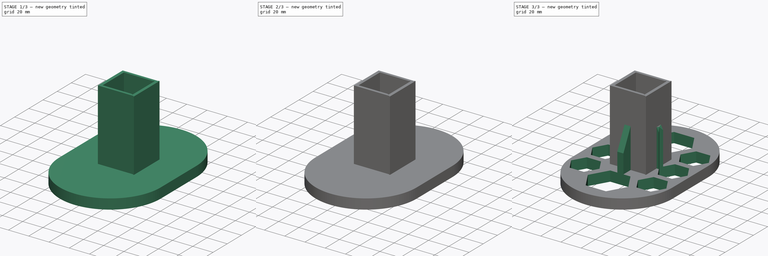
[diagram: build sequence overview — one tinted view per stage of 3, left to right]
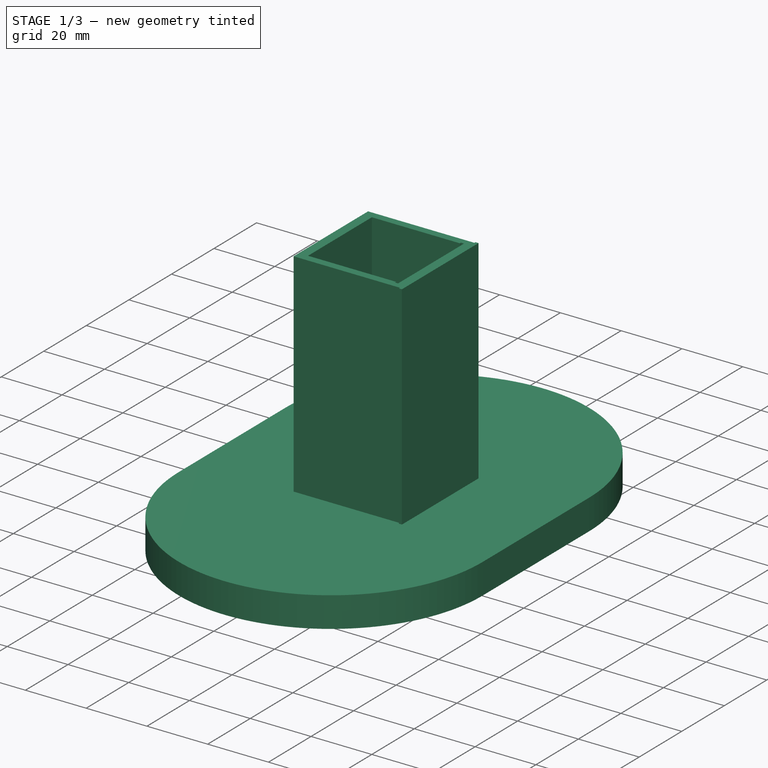
[diagram: stage 1 of 3 — iso view after this stage's code; geometry added in this stage tinted green]
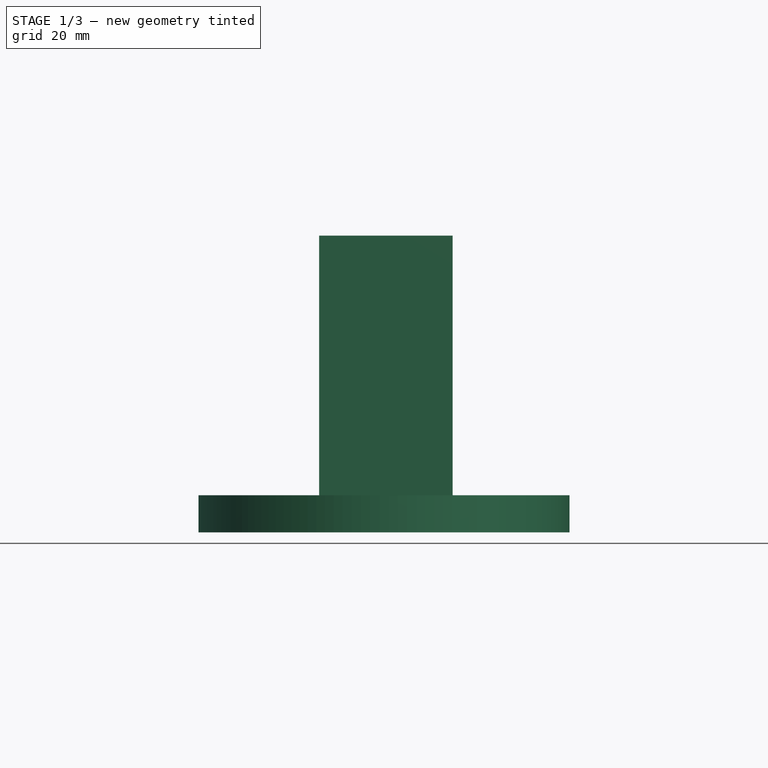
[diagram: stage 1 of 3 — front view after this stage's code; geometry added in this stage tinted green]
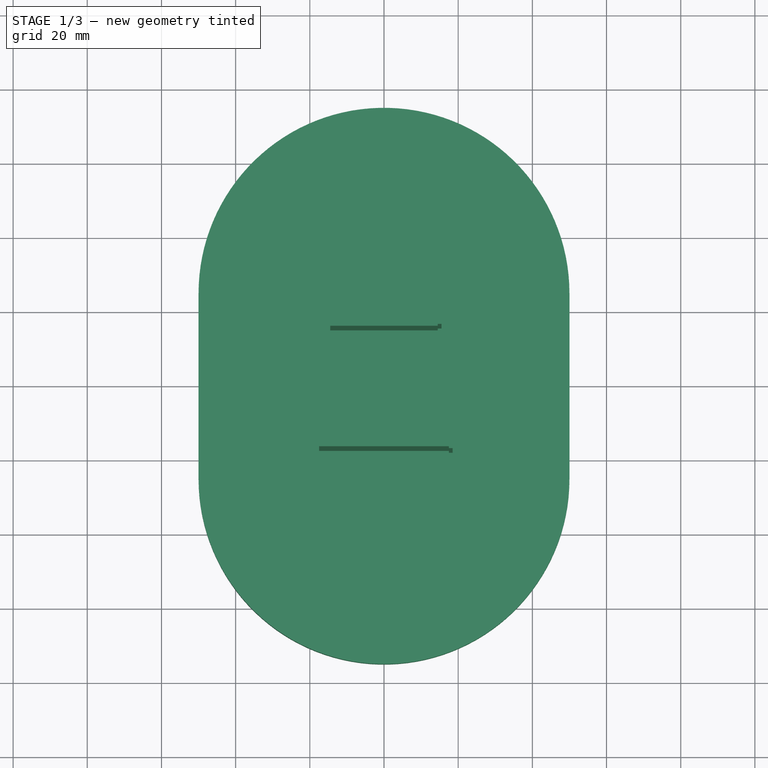
[diagram: stage 1 of 3 — top view after this stage's code; geometry added in this stage tinted green]
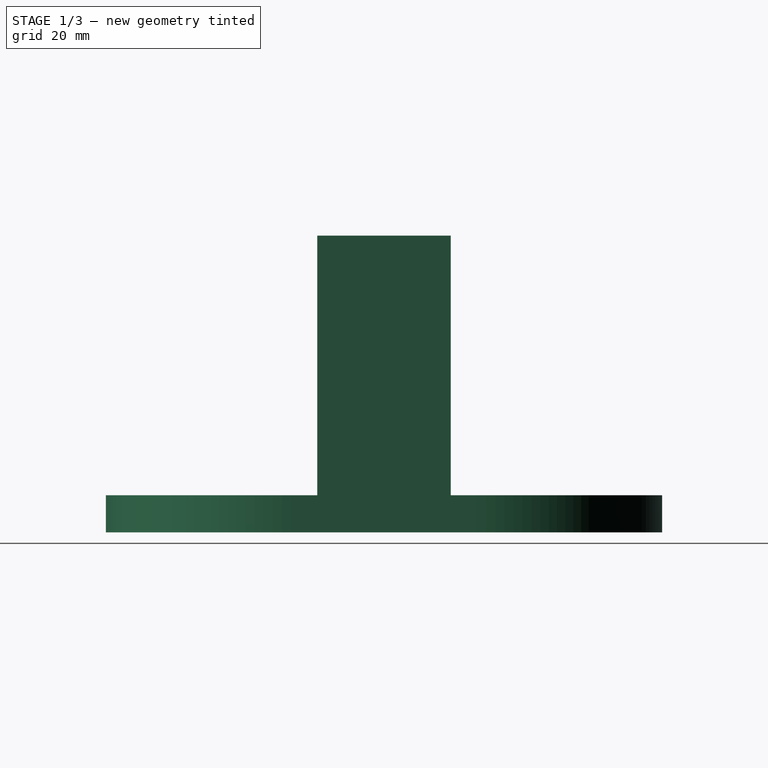
[diagram: stage 1 of 3 — right view after this stage's code; geometry added in this stage tinted green]
FCSTD DOCUMENT  (FreeCAD 0.19R24267 +99 (Git))
Label: Shoe_base
License: All rights reserved
LicenseURL: http://en.wikipedia.org/wiki/All_rights_reserved
objects: Sketcher::SketchObject×4, PartDesign::Pad×3, PartDesign::PolarPattern×1, PartDesign::Pocket×1, PartDesign::Body×1
note: 14 computed .brp shape members not serialized (recipe doc carries the construction recipe); baked Part::Feature solids carry a one-line shape summary decoded from their .brp

FEATURE [Sketcher::SketchObject] Sketch
  FullyConstrained = true
  MapMode = 5
  Support = -> [XY_Plane]
  sketch-geometry (4):
    g0: ArcOfCircle CenterX=1.29e-14 CenterY=25 CenterZ=0 NormalX=0 NormalY=0 NormalZ=1 AngleXU=0 Radius=50 StartAngle=-9e-16 EndAngle=3.14159
    g1: ArcOfCircle CenterX=-1.29e-14 CenterY=-25 CenterZ=0 NormalX=0 NormalY=0 NormalZ=1 AngleXU=0 Radius=50 StartAngle=3.14159 EndAngle=6.28319
    g2: LineSegment StartX=-50 StartY=25 StartZ=0 EndX=-50 EndY=-25 EndZ=0
    g3: LineSegment StartX=50 StartY=25 StartZ=0 EndX=50 EndY=-25 EndZ=0
  constraints (9):
    c: Tangent(g0,g3) = 1.5708
    c: Tangent(g0,g2) = -1.5708
    c: Tangent(g2,g1) = -1.5708
    c: Tangent(g3,g1) = 1.5708
    c: Vertical(g2)
    c: Equal(g0,g1)
    c: Symmetric(g0,g1,g-1)
    c: Distance(g0,g1) = 50
    c: Radius(g0) = 50
FEATURE [PartDesign::Pad] Pad
  Direction = (1,1,1)
  Length = 10
  Length2 = 100
  Profile = -> Sketch
  Type = 0
FEATURE [Sketcher::SketchObject] Sketch001
  FullyConstrained = true
  MapMode = 5
  Placement = pos=(0,0,10) rot=(0,0,1;0rad)
  Support = -> [Pad]
  sketch-geometry (16):
    g0: LineSegment StartX=-17.5 StartY=17.5 StartZ=0 EndX=17.5 EndY=17.5 EndZ=0
    g1: LineSegment StartX=17.5 StartY=17.5 StartZ=0 EndX=17.5 EndY=18 EndZ=0
    g2: LineSegment StartX=17.5 StartY=18 StartZ=0 EndX=18.5 EndY=18 EndZ=0
    g3: LineSegment StartX=18.5 StartY=18 StartZ=0 EndX=18.5 EndY=-18 EndZ=0
    g4: LineSegment StartX=18.5 StartY=-18 StartZ=0 EndX=17.5 EndY=-18 EndZ=0
    g5: LineSegment StartX=17.5 StartY=-18 StartZ=0 EndX=17.5 EndY=-17.5 EndZ=0
    g6: LineSegment StartX=17.5 StartY=-17.5 StartZ=0 EndX=-17.5 EndY=-17.5 EndZ=0
    g7: LineSegment StartX=-17.5 StartY=-17.5 StartZ=0 EndX=-17.5 EndY=17.5 EndZ=0
    g8: LineSegment StartX=-14.5 StartY=15 StartZ=0 EndX=-14.5 EndY=-15 EndZ=0
    g9: LineSegment StartX=-14.5 StartY=-15 StartZ=0 EndX=14.5 EndY=-15 EndZ=0
    g10: LineSegment StartX=14.5 StartY=-15 StartZ=0 EndX=14.5 EndY=-15.5 EndZ=0
    g11: LineSegment StartX=14.5 StartY=-15.5 StartZ=0 EndX=15.5 EndY=-15.5 EndZ=0
    g12: LineSegment StartX=15.5 StartY=-15.5 StartZ=0 EndX=15.5 EndY=15.5 EndZ=0
    g13: LineSegment StartX=15.5 StartY=15.5 StartZ=0 EndX=14.5 EndY=15.5 EndZ=0
    g14: LineSegment StartX=14.5 StartY=15.5 StartZ=0 EndX=14.5 EndY=15 EndZ=0
    g15: LineSegment StartX=14.5 StartY=15 StartZ=0 EndX=-14.5 EndY=15 EndZ=0
  constraints (40):
    c: Coincident(g0,g1)
    c: Coincident(g1,g2)
    c: Horizontal(g2)
    c: Coincident(g2,g3)
    c: Coincident(g3,g4)
    c: Coincident(g4,g5)
    c: Vertical(g5)
    c: Coincident(g5,g6)
    c: Coincident(g6,g7)
    c: Coincident(g7,g0)
    c: Symmetric(g0,g5,g-1)
    c: Symmetric(g1,g4,g-1)
    c: Symmetric(g2,g3,g-1)
    c: Symmetric(g0,g6,g-1)
    c: Distance(g7) = 35
    c: Distance(g0) = 35
    c: Distance(g2) = 1
    c: Distance(g3) = 36
    c: Symmetric(g0,g0,g-2)
    c: Coincident(g8,g9)
    c: Horizontal(g9)
    c: Coincident(g9,g10)
    c: Vertical(g10)
    c: Coincident(g10,g11)
    c: Horizontal(g11)
    c: Coincident(g11,g12)
    c: Coincident(g12,g13)
    c: Horizontal(g13)
    c: Coincident(g13,g14)
    c: Vertical(g14)
    c: Coincident(g14,g15)
    c: Coincident(g15,g8)
    c: Symmetric(g8,g8,g-1)
    c: Distance(g8) = 30
    c: Distance(g15) = 29
    c: Distance(g13) = 1
    c: Distance(g12) = 31
    c: Symmetric(g12,g11,g-1)
    c: Distance(g9) = 29
    c: Symmetric(g8,g14,g-2)
FEATURE [PartDesign::Pad] Pad001
  BaseFeature = -> Pad
  Direction = (1,1,1)
  Length = 70
  Length2 = 100
  Profile = -> Sketch001
  Type = 0
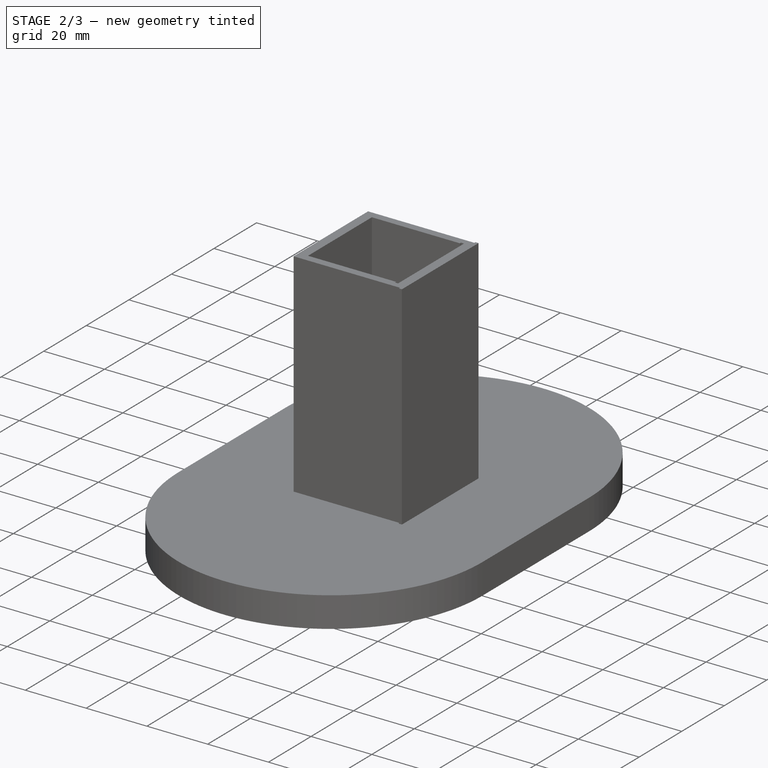
[diagram: stage 2 of 3 — iso view after this stage's code; geometry added in this stage tinted green]
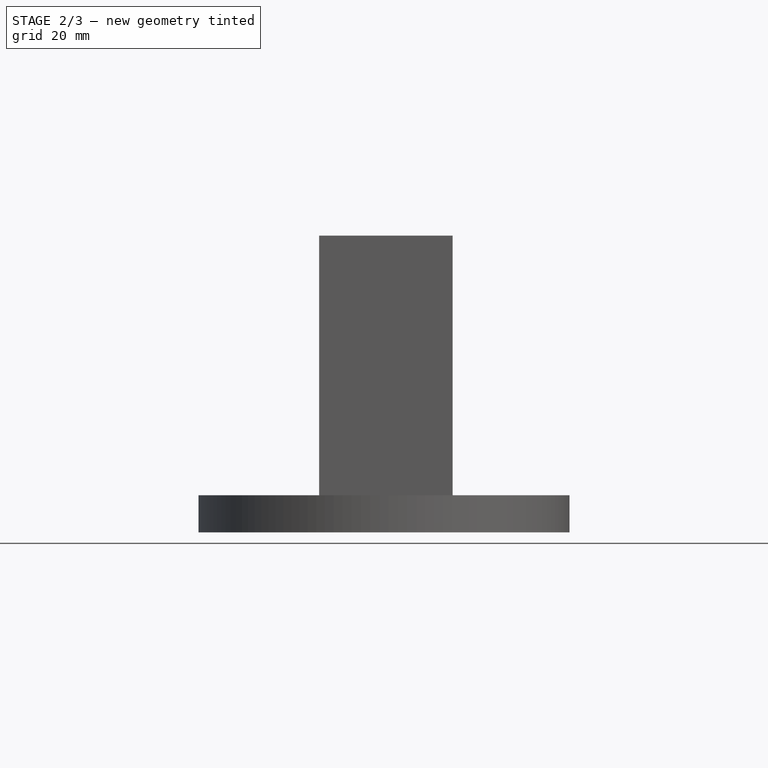
[diagram: stage 2 of 3 — front view after this stage's code; geometry added in this stage tinted green]
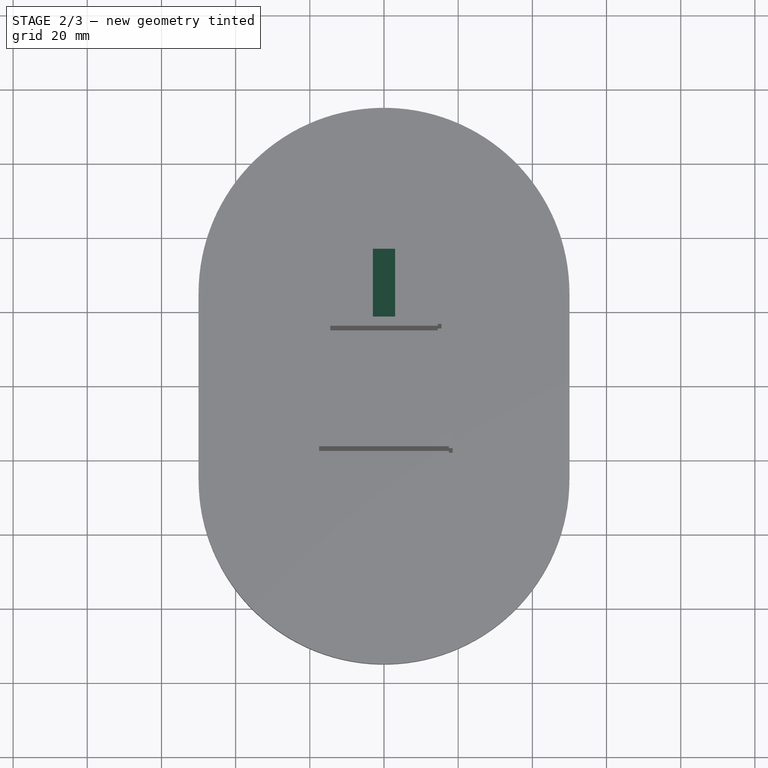
[diagram: stage 2 of 3 — top view after this stage's code; geometry added in this stage tinted green]
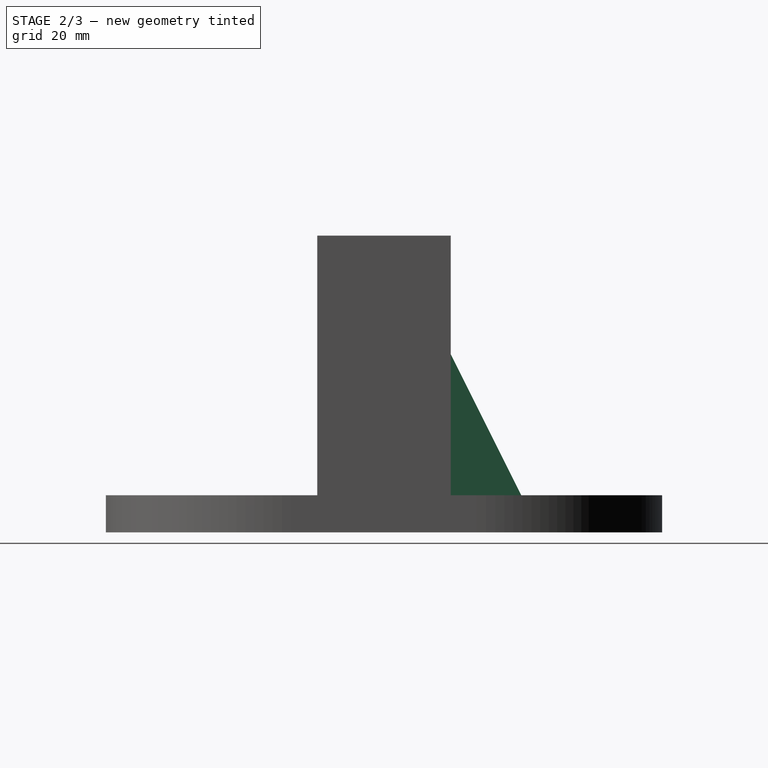
[diagram: stage 2 of 3 — right view after this stage's code; geometry added in this stage tinted green]
FEATURE [Sketcher::SketchObject] Sketch002
  ExternalGeometry = -> [Pad001]
  FullyConstrained = true
  MapMode = 5
  Placement = pos=(0,0,0) rot=(0.57735,0.57735,0.57735;2.0944rad)
  Support = -> [YZ_Plane]
  sketch-geometry (3):
    g0: LineSegment StartX=17 StartY=50 StartZ=0 EndX=37 EndY=10 EndZ=0
    g1: LineSegment StartX=37 StartY=10 StartZ=0 EndX=17 EndY=10 EndZ=0
    g2: LineSegment StartX=17 StartY=10 StartZ=0 EndX=17 EndY=50 EndZ=0
  constraints (9):
    c: PointOnObject(g0,g-3)
    c: Coincident(g0,g1)
    c: Coincident(g1,g2)
    c: Coincident(g2,g0)
    c: Distance(g1) = 20
    c: Distance(g2) = 40
    c: Distance(g0,g-2) = 17
    c: Distance(g1,g-2) = 17
    c: Perpendicular(g2,g1)
FEATURE [PartDesign::Pad] Pad002
  BaseFeature = -> Pad001
  Direction = (1,1,1)
  Length = 3
  Length2 = 3
  Profile = -> Sketch002
  Type = 4
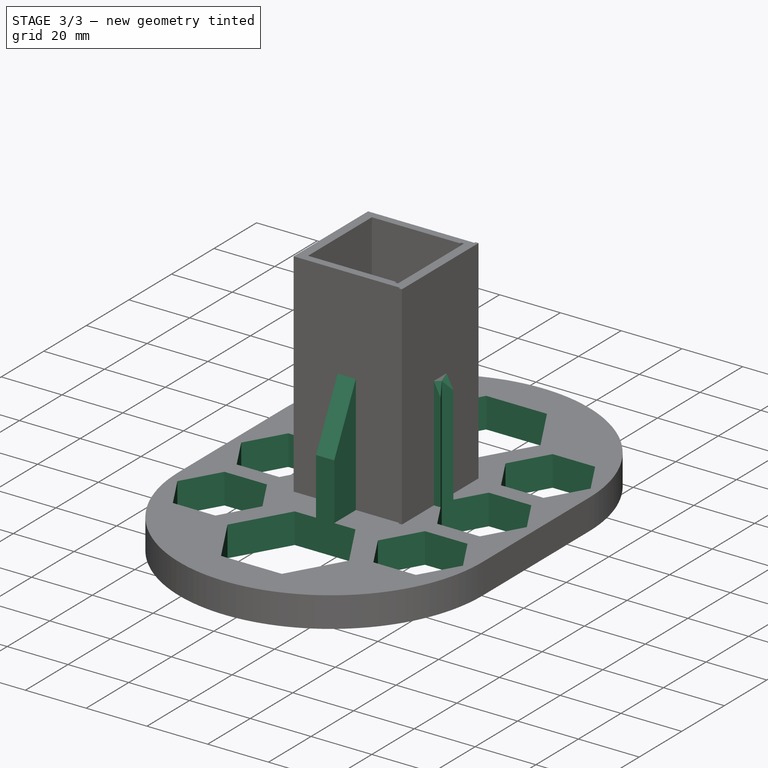
[diagram: stage 3 of 3 — iso view after this stage's code; geometry added in this stage tinted green]
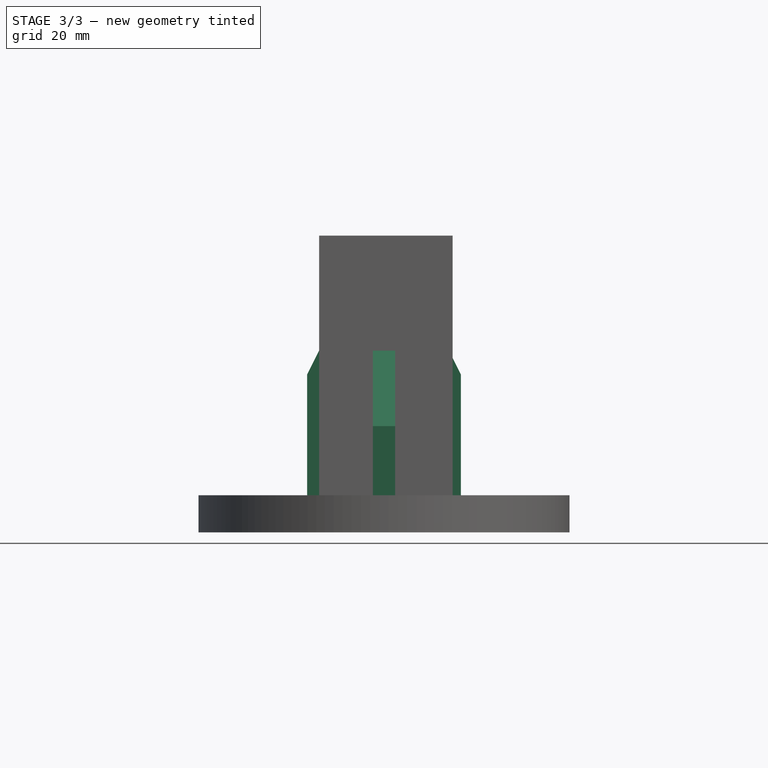
[diagram: stage 3 of 3 — front view after this stage's code; geometry added in this stage tinted green]
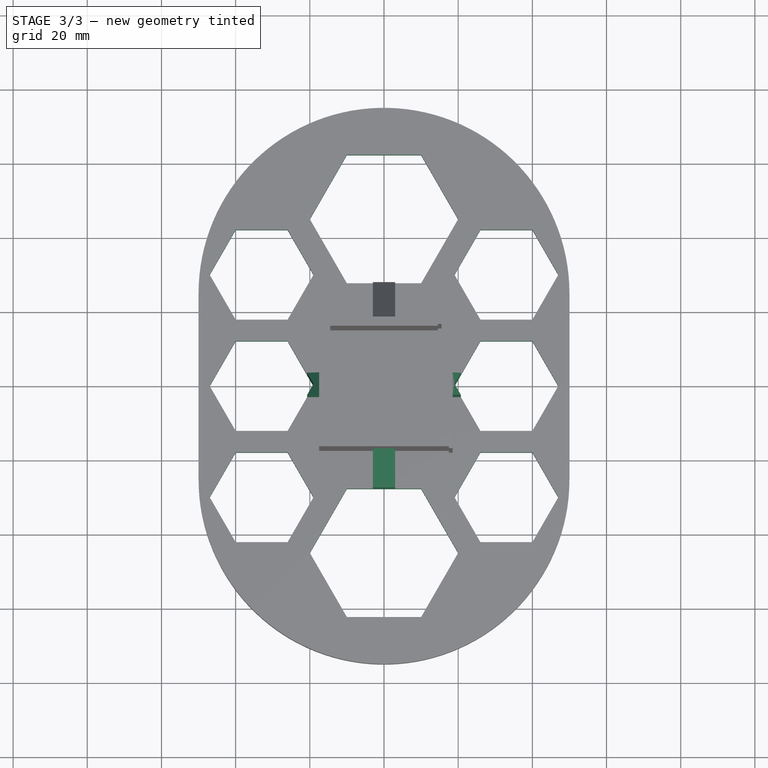
[diagram: stage 3 of 3 — top view after this stage's code; geometry added in this stage tinted green]
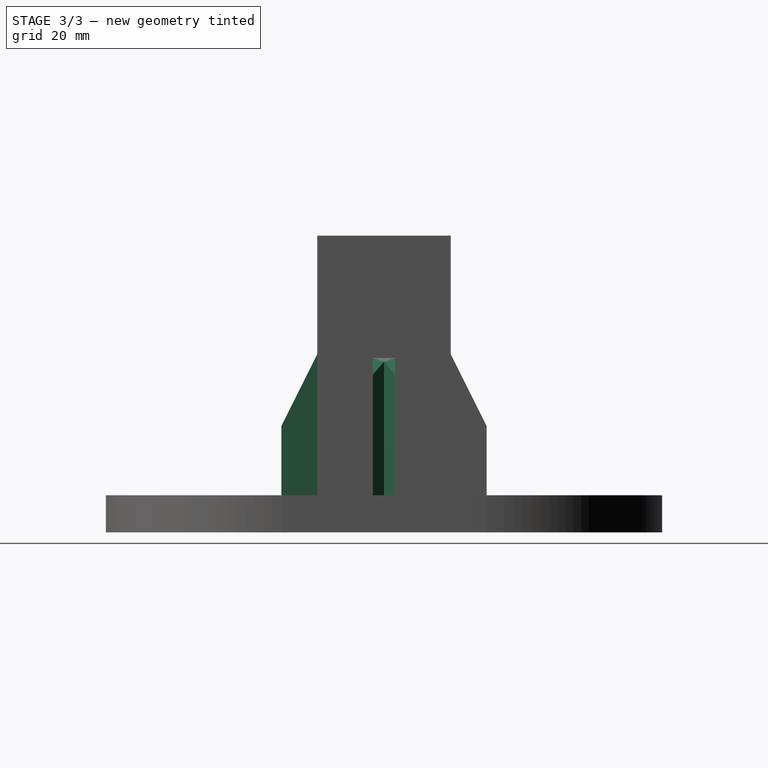
[diagram: stage 3 of 3 — right view after this stage's code; geometry added in this stage tinted green]
FEATURE [PartDesign::PolarPattern] PolarPattern
  Angle = 360
  Axis = -> Z_Axis
  BaseFeature = -> Pad002
  Occurrences = 4
  Originals = -> [Pad002]
FEATURE [Sketcher::SketchObject] Sketch003
  FullyConstrained = true
  MapMode = 5
  Placement = pos=(0,0,10) rot=(0,0,1;0rad)
  Support = -> [Pad001]
  sketch-geometry (56):
    g0: LineSegment StartX=20 StartY=45 StartZ=0 EndX=10 EndY=62.3205 EndZ=0
    g1: LineSegment StartX=10 StartY=62.3205 StartZ=0 EndX=-10 EndY=62.3205 EndZ=0
    g2: LineSegment StartX=-10 StartY=62.3205 StartZ=0 EndX=-20 EndY=45 EndZ=0
    g3: LineSegment StartX=-20 StartY=45 StartZ=0 EndX=-10 EndY=27.6795 EndZ=0
    g4: LineSegment StartX=-10 StartY=27.6795 StartZ=0 EndX=10 EndY=27.6795 EndZ=0
    g5: LineSegment StartX=10 StartY=27.6795 StartZ=0 EndX=20 EndY=45 EndZ=0
    g6: Circle CenterX=0 CenterY=45 CenterZ=0 NormalX=0 NormalY=0 NormalZ=1 AngleXU=0 Radius=20
    g7: LineSegment StartX=-26 StartY=17.8756 StartZ=0 EndX=-19 EndY=30 EndZ=0
    g8: LineSegment StartX=-19 StartY=30 StartZ=0 EndX=-26 EndY=42.1244 EndZ=0
    g9: LineSegment StartX=-26 StartY=42.1244 StartZ=0 EndX=-40 EndY=42.1244 EndZ=0
    g10: LineSegment StartX=-40 StartY=42.1244 StartZ=0 EndX=-47 EndY=30 EndZ=0
    g11: LineSegment StartX=-47 StartY=30 StartZ=0 EndX=-40 EndY=17.8756 EndZ=0
    g12: LineSegment StartX=-40 StartY=17.8756 StartZ=0 EndX=-26 EndY=17.8756 EndZ=0
    g13: Circle CenterX=-33 CenterY=30 CenterZ=0 NormalX=0 NormalY=0 NormalZ=1 AngleXU=0 Radius=14
    g14: LineSegment StartX=40 StartY=17.8756 StartZ=0 EndX=47 EndY=30 EndZ=0
    g15: LineSegment StartX=47 StartY=30 StartZ=0 EndX=40 EndY=42.1244 EndZ=0
    g16: LineSegment StartX=40 StartY=42.1244 StartZ=0 EndX=26 EndY=42.1244 EndZ=0
    g17: LineSegment StartX=26 StartY=42.1244 StartZ=0 EndX=19 EndY=30 EndZ=0
    g18: LineSegment StartX=19 StartY=30 StartZ=0 EndX=26 EndY=17.8756 EndZ=0
    g19: LineSegment StartX=26 StartY=17.8756 StartZ=0 EndX=40 EndY=17.8756 EndZ=0
    g20: Circle CenterX=33 CenterY=30 CenterZ=0 NormalX=0 NormalY=0 NormalZ=1 AngleXU=0 Radius=14
    g21: LineSegment StartX=-19 StartY=-1e-15 StartZ=0 EndX=-26 EndY=12.1244 EndZ=0
    g22: LineSegment StartX=-26 StartY=12.1244 StartZ=0 EndX=-40 EndY=12.1244 EndZ=0
    g23: LineSegment StartX=-40 StartY=12.1244 StartZ=0 EndX=-47 EndY=-1.42e-14 EndZ=0
    g24: LineSegment StartX=-47 StartY=-1.42e-14 StartZ=0 EndX=-40 EndY=-12.1244 EndZ=0
    g25: LineSegment StartX=-40 StartY=-12.1244 StartZ=0 EndX=-26 EndY=-12.1244 EndZ=0
    g26: LineSegment StartX=-26 StartY=-12.1244 StartZ=0 EndX=-19 EndY=-1.8e-15 EndZ=0
    g27: Circle CenterX=-33 CenterY=0 CenterZ=0 NormalX=0 NormalY=0 NormalZ=1 AngleXU=0 Radius=14
    g28: LineSegment StartX=20 StartY=-45 StartZ=0 EndX=10 EndY=-27.6795 EndZ=0
    g29: LineSegment StartX=10 StartY=-27.6795 StartZ=0 EndX=-10 EndY=-27.6795 EndZ=0
    g30: LineSegment StartX=-10 StartY=-27.6795 StartZ=0 EndX=-20 EndY=-45 EndZ=0
    g31: LineSegment StartX=-20 StartY=-45 StartZ=0 EndX=-10 EndY=-62.3205 EndZ=0
    g32: LineSegment StartX=-10 StartY=-62.3205 StartZ=0 EndX=10 EndY=-62.3205 EndZ=0
    g33: LineSegment StartX=10 StartY=-62.3205 StartZ=0 EndX=20 EndY=-45 EndZ=0
    g34: Circle CenterX=0 CenterY=-45 CenterZ=0 NormalX=0 NormalY=0 NormalZ=1 AngleXU=0 Radius=20
    g35: LineSegment StartX=40 StartY=-12.1244 StartZ=0 EndX=47 EndY=0 EndZ=0
    g36: LineSegment StartX=47 StartY=0 StartZ=0 EndX=40 EndY=12.1244 EndZ=0
    g37: LineSegment StartX=40 StartY=12.1244 StartZ=0 EndX=26 EndY=12.1244 EndZ=0
    g38: LineSegment StartX=26 StartY=12.1244 StartZ=0 EndX=19 EndY=0 EndZ=0
    g39: LineSegment StartX=19 StartY=0 StartZ=0 EndX=26 EndY=-12.1244 EndZ=0
    g40: LineSegment StartX=26 StartY=-12.1244 StartZ=0 EndX=40 EndY=-12.1244 EndZ=0
    g41: Circle CenterX=33 CenterY=0 CenterZ=0 NormalX=0 NormalY=0 NormalZ=1 AngleXU=0 Radius=14
    g42: LineSegment StartX=40 StartY=-42.1244 StartZ=0 EndX=47 EndY=-30 EndZ=0
    g43: LineSegment StartX=47 StartY=-30 StartZ=0 EndX=40 EndY=-17.8756 EndZ=0
    g44: LineSegment StartX=40 StartY=-17.8756 StartZ=0 EndX=26 EndY=-17.8756 EndZ=0
    g45: LineSegment StartX=26 StartY=-17.8756 StartZ=0 EndX=19 EndY=-30 EndZ=0
    g46: LineSegment StartX=19 StartY=-30 StartZ=0 EndX=26 EndY=-42.1244 EndZ=0
    g47: LineSegment StartX=26 StartY=-42.1244 StartZ=0 EndX=40 EndY=-42.1244 EndZ=0
    g48: Circle CenterX=33 CenterY=-30 CenterZ=0 NormalX=0 NormalY=0 NormalZ=1 AngleXU=0 Radius=14
    g49: LineSegment StartX=-19 StartY=-30 StartZ=0 EndX=-26 EndY=-17.8756 EndZ=0
    g50: LineSegment StartX=-26 StartY=-17.8756 StartZ=0 EndX=-40 EndY=-17.8756 EndZ=0
    g51: LineSegment StartX=-40 StartY=-17.8756 StartZ=0 EndX=-47 EndY=-30 EndZ=0
    g52: LineSegment StartX=-47 StartY=-30 StartZ=0 EndX=-40 EndY=-42.1244 EndZ=0
    g53: LineSegment StartX=-40 StartY=-42.1244 StartZ=0 EndX=-26 EndY=-42.1244 EndZ=0
    g54: LineSegment StartX=-26 StartY=-42.1244 StartZ=0 EndX=-19 EndY=-30 EndZ=0
    g55: Circle CenterX=-33 CenterY=-30 CenterZ=0 NormalX=0 NormalY=0 NormalZ=1 AngleXU=0 Radius=14
  constraints (131):
    c: Coincident(g0,g1)
    c: Coincident(g1,g2)
    c: Coincident(g2,g3)
    c: Coincident(g3,g4)
    c: Coincident(g4,g5)
    c: Coincident(g5,g0)
    c: Equal(g0, g1-g5) x5
    c: PointOnObject(g0,g6)
    c: PointOnObject(g1,g6)
    c: PointOnObject(g2,g6)
    c: PointOnObject(g3,g6)
    c: PointOnObject(g4,g6)
    c: PointOnObject(g5,g6)
    c: PointOnObject(g6,g-2)
    c: Coincident(g7,g8)
    c: Coincident(g8,g9)
    c: Coincident(g9,g10)
    c: Coincident(g10,g11)
    c: Coincident(g11,g12)
    c: Coincident(g12,g7)
    c: Equal(g7, g8-g12) x5
    c: PointOnObject(g7,g13)
    c: PointOnObject(g8,g13)
    c: PointOnObject(g9,g13)
    c: PointOnObject(g10,g13)
    c: PointOnObject(g11,g13)
    c: PointOnObject(g12,g13)
    c: Coincident(g14,g15)
    c: Coincident(g15,g16)
    c: Coincident(g16,g17)
    c: Coincident(g17,g18)
    c: Coincident(g18,g19)
    c: Coincident(g19,g14)
    c: Equal(g14, g15-g19) x5
    c: PointOnObject(g14,g20)
    c: PointOnObject(g15,g20)
    c: PointOnObject(g16,g20)
    c: PointOnObject(g17,g20)
    c: PointOnObject(g18,g20)
    c: PointOnObject(g19,g20)
    c: Coincident(g21,g22)
    c: Coincident(g22,g23)
    c: Coincident(g23,g24)
    c: Coincident(g24,g25)
    c: Coincident(g25,g26)
    c: Coincident(g26,g21)
    c: Equal(g21, g22-g26) x5
    c: PointOnObject(g21,g27)
    c: PointOnObject(g22,g27)
    c: PointOnObject(g23,g27)
    c: PointOnObject(g24,g27)
    c: PointOnObject(g25,g27)
    c: PointOnObject(g26,g27)
    c: Coincident(g28,g29)
    c: Coincident(g29,g30)
    c: Coincident(g30,g31)
    c: Coincident(g31,g32)
    c: Coincident(g32,g33)
    c: Coincident(g33,g28)
    c: Equal(g28, g29-g33) x5
    c: PointOnObject(g28,g34)
    c: PointOnObject(g29,g34)
    c: PointOnObject(g30,g34)
    c: PointOnObject(g31,g34)
    c: PointOnObject(g32,g34)
    c: PointOnObject(g33,g34)
    c: Coincident(g35,g36)
    c: Coincident(g36,g37)
    c: Coincident(g37,g38)
    c: Coincident(g38,g39)
    c: Coincident(g39,g40)
    c: Coincident(g40,g35)
    c: Equal(g35, g36-g40) x5
    c: PointOnObject(g35,g41)
    c: PointOnObject(g36,g41)
    c: PointOnObject(g37,g41)
    c: PointOnObject(g38,g41)
    c: PointOnObject(g39,g41)
    c: PointOnObject(g40,g41)
    c: PointOnObject(g41,g-1)
    c: Coincident(g42,g43)
    c: Coincident(g43,g44)
    c: Coincident(g44,g45)
    c: Coincident(g45,g46)
    c: Coincident(g46,g47)
    c: Coincident(g47,g42)
    c: Equal(g42, g43-g47) x5
    c: PointOnObject(g42,g48)
    c: PointOnObject(g43,g48)
    c: PointOnObject(g44,g48)
    c: PointOnObject(g45,g48)
    c: PointOnObject(g46,g48)
    c: PointOnObject(g47,g48)
    c: Coincident(g49,g50)
    c: Coincident(g50,g51)
    c: Coincident(g51,g52)
    c: Coincident(g52,g53)
    c: Coincident(g53,g54)
    c: Coincident(g54,g49)
    c: Equal(g49, g50-g54) x5
    c: PointOnObject(g49,g55)
    c: PointOnObject(g50,g55)
    c: PointOnObject(g51,g55)
    c: PointOnObject(g52,g55)
    c: PointOnObject(g53,g55)
    c: PointOnObject(g54,g55)
    c: Symmetric(g6,g34,g-1)
    c: Symmetric(g20,g48,g-1)
    c: Symmetric(g13,g55,g-1)
    c: Symmetric(g27,g41,g-2)
    c: Horizontal(g0,g2)
    c: Horizontal(g16)
    c: Horizontal(g9)
    c: Symmetric(g13,g20,g-2)
    c: Equal(g9,g16)
    c: Equal(g22,g12)
    c: Horizontal(g22)
    c: Horizontal(g37)
    c: Vertical(g11,g22)
    c: Distance(g8) = 14
    c: Distance(g4) = 20
    c: Equal(g19,g37)
    c: Equal(g4,g29)
    c: Horizontal(g29)
    c: Horizontal(g44)
    c: Equal(g40,g44)
    c: Equal(g46,g54)
    c: Horizontal(g50)
    c: DistanceX(g13) = -33
    c: DistanceY(g13) = 30
    c: Distance(g6,g-1) = 45
FEATURE [PartDesign::Pocket] Pocket
  BaseFeature = -> PolarPattern
  Length = 5
  Length2 = 100
  Midplane = true
  Profile = -> Sketch003
  Reversed = true
  Type = 1
FEATURE [PartDesign::Body] Body
  Group = -> [Sketch,Pad,Sketch001,Pad001,Sketch002,Pad002,PolarPattern,Sketch003,Pocket]
  Origin = -> Origin
  Tip = -> Pocket
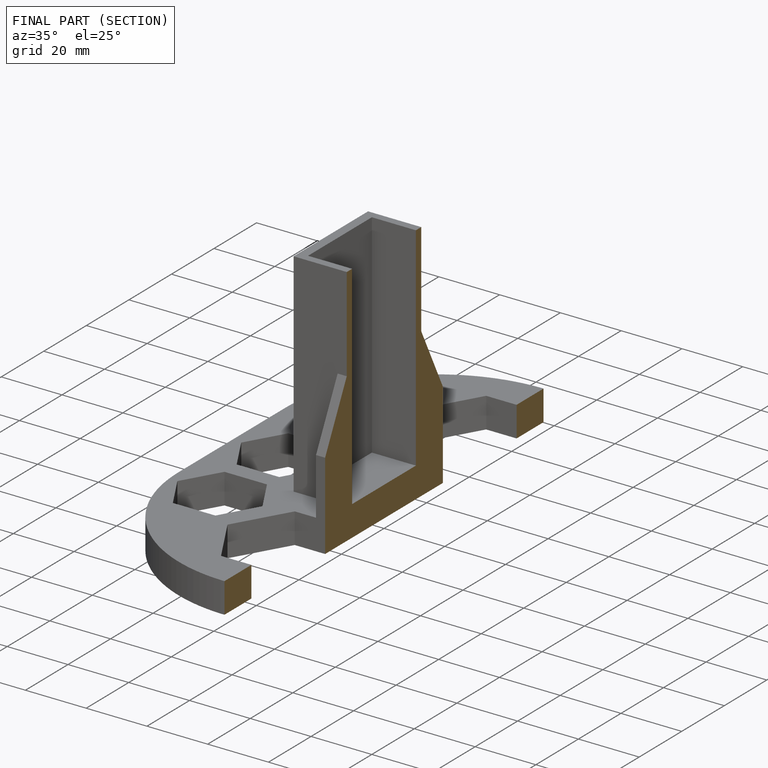
[diagram: finished part — half-section view (interior)]
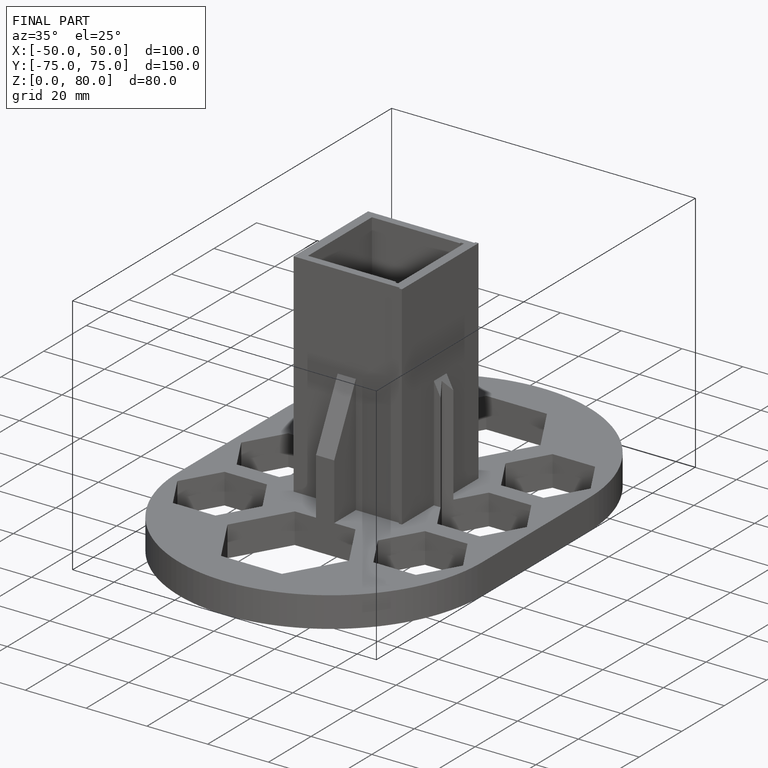
[diagram: finished part — iso view with bounding-box wireframe]
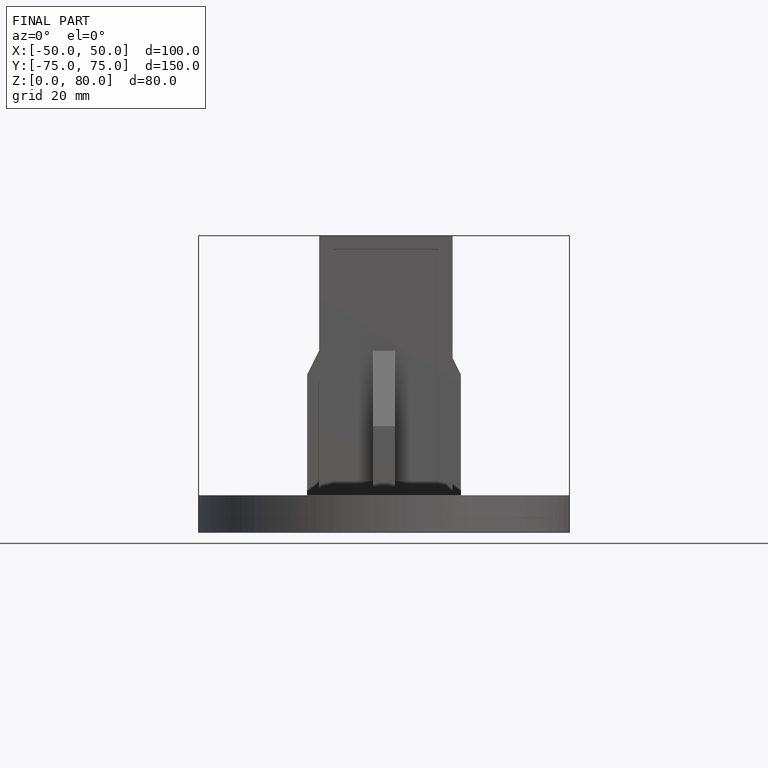
[diagram: finished part — front view with bounding-box wireframe]
